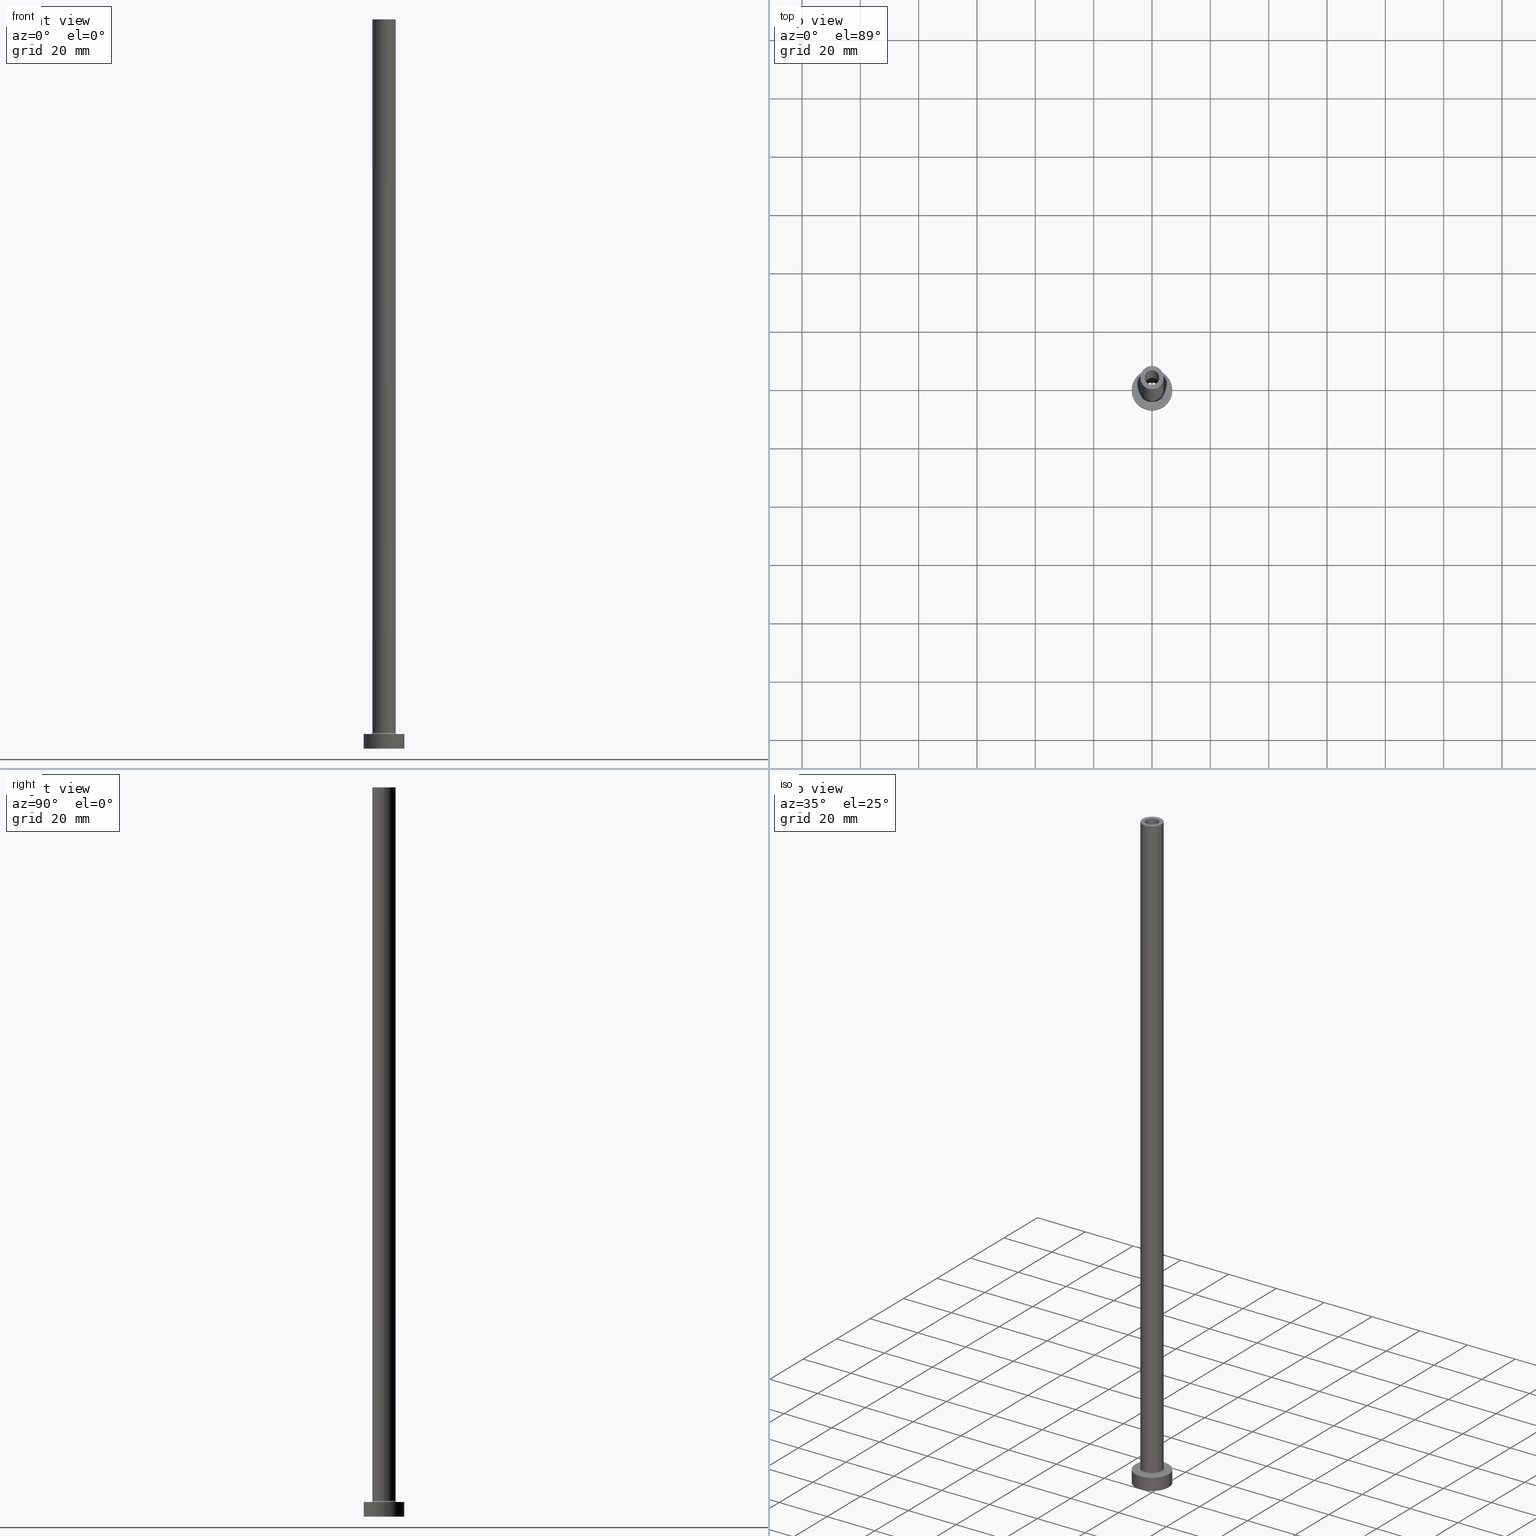
[diagram: canonical four-view strip — front | top / right | iso, engineering-drawing reading convention]
A machine part, canonical four-view strip (front | top / right | iso — engineering-drawing reading convention). The complete STEP part file that produces these views, byte-faithful:
ISO-10303-21;
HEADER;
FILE_DESCRIPTION (( 'STEP AP203' ),
    '1' );
FILE_NAME ('ade3.STEP',
    '2023-02-13T17:10:36',
    ( '' ),
    ( '' ),
    'SwSTEP 2.0',
    'SolidWorks 2019',
    '' );
FILE_SCHEMA (( 'CONFIG_CONTROL_DESIGN' ));
ENDSEC;

DATA;
#1 = PERSON_AND_ORGANIZATION ( #225, #431 ) ;
#2 = PLANE ( 'NONE',  #218 ) ;
#3 = ORIENTED_EDGE ( 'NONE', *, *, #113, .T. ) ;
#4 = AXIS2_PLACEMENT_3D ( 'NONE', #323, #283, #158 ) ;
#5 = CALENDAR_DATE ( 2023, 13, 2 ) ;
#6 = CC_DESIGN_PERSON_AND_ORGANIZATION_ASSIGNMENT ( #1, #369, ( #384 ) ) ;
#7 = VERTEX_POINT ( 'NONE', #350 ) ;
#8 = PLANE ( 'NONE',  #154 ) ;
#9 = PRODUCT_DEFINITION_SHAPE ( 'NONE', 'NONE',  #239 ) ;
#10 = AXIS2_PLACEMENT_3D ( 'NONE', #444, #296, #141 ) ;
#11 = DIRECTION ( 'NONE',  ( -0.000000000000000000, -0.000000000000000000, -1.000000000000000000 ) ) ;
#12 = LOCAL_TIME ( 18, 10, 36.00000000000000000, #25 ) ;
#13 = CIRCLE ( 'NONE', #456, 7.000000000000000000 ) ;
#14 = CARTESIAN_POINT ( 'NONE',  ( 2.500000000000000000, 3.061616997868382648E-16, 205.0000000000000284 ) ) ;
#15 = ORIENTED_EDGE ( 'NONE', *, *, #251, .T. ) ;
#16 = APPROVAL_STATUS ( 'not_yet_approved' ) ;
#17 = CARTESIAN_POINT ( 'NONE',  ( 0.000000000000000000, 0.000000000000000000, 250.0000000000000000 ) ) ;
#18 = DIRECTION ( 'NONE',  ( 0.000000000000000000, 0.000000000000000000, 1.000000000000000000 ) ) ;
#19 = VERTEX_POINT ( 'NONE', #104 ) ;
#20 = AXIS2_PLACEMENT_3D ( 'NONE', #84, #331, #257 ) ;
#21 = EDGE_CURVE ( 'NONE', #332, #204, #62, .T. ) ;
#22 = APPLICATION_CONTEXT ( 'configuration controlled 3d designs of mechanical parts and assemblies' ) ;
#23 = DIRECTION ( 'NONE',  ( 0.000000000000000000, 0.000000000000000000, 1.000000000000000000 ) ) ;
#24 = ORIENTED_EDGE ( 'NONE', *, *, #440, .T. ) ;
#25 = COORDINATED_UNIVERSAL_TIME_OFFSET ( 1, 0, .AHEAD. ) ;
#26 = LINE ( 'NONE', #349, #112 ) ;
#27 = ORIENTED_EDGE ( 'NONE', *, *, #271, .F. ) ;
#28 = DATE_TIME_ROLE ( 'classification_date' ) ;
#29 = CARTESIAN_POINT ( 'NONE',  ( 0.000000000000000000, 0.000000000000000000, 250.0000000000000000 ) ) ;
#30 = PERSON_AND_ORGANIZATION ( #225, #431 ) ;
#31 = CIRCLE ( 'NONE', #88, 4.000000000000000000 ) ;
#32 = LINE ( 'NONE', #270, #235 ) ;
#33 = ORIENTED_EDGE ( 'NONE', *, *, #210, .F. ) ;
#34 = DIRECTION ( 'NONE',  ( -1.000000000000000000, 0.000000000000000000, 0.000000000000000000 ) ) ;
#35 = EDGE_CURVE ( 'NONE', #92, #258, #99, .T. ) ;
#36 = DIRECTION ( 'NONE',  ( 0.000000000000000000, 0.000000000000000000, 1.000000000000000000 ) ) ;
#37 = VECTOR ( 'NONE', #272, 1000.000000000000000 ) ;
#38 = CIRCLE ( 'NONE', #353, 4.500000000000000888 ) ;
#39 = CIRCLE ( 'NONE', #134, 2.500000000000000000 ) ;
#40 = VECTOR ( 'NONE', #315, 1000.000000000000000 ) ;
#41 =( NAMED_UNIT ( * ) SI_UNIT ( $, .STERADIAN. ) SOLID_ANGLE_UNIT ( ) );
#42 = DIRECTION ( 'NONE',  ( 1.000000000000000000, 0.000000000000000000, -0.000000000000000000 ) ) ;
#43 = ORIENTED_EDGE ( 'NONE', *, *, #59, .F. ) ;
#44 = DATE_AND_TIME ( #5, #355 ) ;
#45 = EDGE_CURVE ( 'NONE', #157, #92, #418, .T. ) ;
#46 = EDGE_LOOP ( 'NONE', ( #43, #256 ) ) ;
#47 = AXIS2_PLACEMENT_3D ( 'NONE', #273, #381, #348 ) ;
#48 = ORIENTED_EDGE ( 'NONE', *, *, #325, .F. ) ;
#49 = DIRECTION ( 'NONE',  ( -1.000000000000000000, 0.000000000000000000, 0.000000000000000000 ) ) ;
#50 = CIRCLE ( 'NONE', #365, 7.000000000000000000 ) ;
#51 = CARTESIAN_POINT ( 'NONE',  ( 0.000000000000000000, 0.000000000000000000, 5.000000000000000000 ) ) ;
#52 = AXIS2_PLACEMENT_3D ( 'NONE', #136, #387, #101 ) ;
#53 = ORIENTED_EDGE ( 'NONE', *, *, #59, .T. ) ;
#54 = PERSON_AND_ORGANIZATION ( #225, #431 ) ;
#55 = DIRECTION ( 'NONE',  ( 0.000000000000000000, 0.000000000000000000, 1.000000000000000000 ) ) ;
#56 = ORIENTED_EDGE ( 'NONE', *, *, #376, .T. ) ;
#57 = CARTESIAN_POINT ( 'NONE',  ( 0.000000000000000000, 0.000000000000000000, 212.4953318805773961 ) ) ;
#58 = ORIENTED_EDGE ( 'NONE', *, *, #461, .F. ) ;
#59 = EDGE_CURVE ( 'NONE', #434, #166, #433, .T. ) ;
#60 = FACE_OUTER_BOUND ( 'NONE', #339, .T. ) ;
#61 = ORIENTED_EDGE ( 'NONE', *, *, #181, .F. ) ;
#62 = CIRCLE ( 'NONE', #378, 2.500000000000000000 ) ;
#63 = CARTESIAN_POINT ( 'NONE',  ( 0.000000000000000000, 0.000000000000000000, 5.000000000000000000 ) ) ;
#64 = ORIENTED_EDGE ( 'NONE', *, *, #113, .F. ) ;
#65 = EDGE_CURVE ( 'NONE', #229, #19, #290, .T. ) ;
#66 = CARTESIAN_POINT ( 'NONE',  ( 0.000000000000000000, 0.000000000000000000, 5.000000000000000000 ) ) ;
#67 = DIRECTION ( 'NONE',  ( 0.000000000000000000, 0.000000000000000000, 1.000000000000000000 ) ) ;
#68 = DIRECTION ( 'NONE',  ( 1.000000000000000000, 0.000000000000000000, 0.000000000000000000 ) ) ;
#69 = APPROVAL_PERSON_ORGANIZATION ( #391, #351, #435 ) ;
#70 = DIRECTION ( 'NONE',  ( -1.000000000000000000, 0.000000000000000000, 0.000000000000000000 ) ) ;
#71 = CARTESIAN_POINT ( 'NONE',  ( -2.500000000000000000, 0.000000000000000000, 250.0000000000000000 ) ) ;
#72 = CARTESIAN_POINT ( 'NONE',  ( 0.000000000000000000, 0.000000000000000000, 250.0000000000000000 ) ) ;
#73 = ADVANCED_FACE ( 'NONE', ( #428 ), #245, .F. ) ;
#74 = VECTOR ( 'NONE', #188, 1000.000000000000000 ) ;
#75 = CC_DESIGN_SECURITY_CLASSIFICATION ( #173, ( #384 ) ) ;
#76 =( NAMED_UNIT ( * ) PLANE_ANGLE_UNIT ( ) SI_UNIT ( $, .RADIAN. ) );
#77 = FACE_OUTER_BOUND ( 'NONE', #362, .T. ) ;
#78 = ORIENTED_EDGE ( 'NONE', *, *, #138, .F. ) ;
#79 = CARTESIAN_POINT ( 'NONE',  ( 0.000000000000000000, 0.000000000000000000, 0.000000000000000000 ) ) ;
#80 = VERTEX_POINT ( 'NONE', #326 ) ;
#81 = ADVANCED_FACE ( 'NONE', ( #318, #149 ), #8, .T. ) ;
#82 = FACE_OUTER_BOUND ( 'NONE', #375, .T. ) ;
#83 = ORIENTED_EDGE ( 'NONE', *, *, #181, .T. ) ;
#84 = CARTESIAN_POINT ( 'NONE',  ( -4.500000000000000888, 5.510910596163089556E-16, 5.500000000000005329 ) ) ;
#85 = ORIENTED_EDGE ( 'NONE', *, *, #282, .T. ) ;
#86 = APPROVAL_DATE_TIME ( #320, #351 ) ;
#87 = DIRECTION ( 'NONE',  ( 1.000000000000000000, 0.000000000000000000, 0.000000000000000000 ) ) ;
#88 = AXIS2_PLACEMENT_3D ( 'NONE', #449, #255, #119 ) ;
#89 = ORIENTED_EDGE ( 'NONE', *, *, #217, .F. ) ;
#90 = CC_DESIGN_PERSON_AND_ORGANIZATION_ASSIGNMENT ( #54, #194, ( #384 ) ) ;
#91 = CARTESIAN_POINT ( 'NONE',  ( 2.500000000000000000, 3.061616997868382648E-16, 250.0000000000000000 ) ) ;
#92 = VERTEX_POINT ( 'NONE', #117 ) ;
#93 = FACE_BOUND ( 'NONE', #439, .T. ) ;
#94 = ORIENTED_EDGE ( 'NONE', *, *, #210, .T. ) ;
#95 = CIRCLE ( 'NONE', #4, 0.5000000000000004441 ) ;
#96 = DIRECTION ( 'NONE',  ( 0.000000000000000000, 0.000000000000000000, 1.000000000000000000 ) ) ;
#97 = VERTEX_POINT ( 'NONE', #253 ) ;
#98 = TOROIDAL_SURFACE ( 'NONE', #287, 4.500000000000000888, 0.5000000000000000000 ) ;
#99 = CIRCLE ( 'NONE', #114, 4.000000000000000000 ) ;
#100 = ADVANCED_FACE ( 'NONE', ( #400, #82 ), #2, .F. ) ;
#101 = DIRECTION ( 'NONE',  ( 1.000000000000000000, 0.000000000000000000, 0.000000000000000000 ) ) ;
#102 = CARTESIAN_POINT ( 'NONE',  ( 0.000000000000000000, 0.000000000000000000, 250.0000000000000000 ) ) ;
#103 = DIRECTION ( 'NONE',  ( 0.000000000000000000, 0.000000000000000000, -1.000000000000000000 ) ) ;
#104 = CARTESIAN_POINT ( 'NONE',  ( -2.500000000000000000, 0.000000000000000000, 250.0000000000000000 ) ) ;
#105 = DIRECTION ( 'NONE',  ( 0.000000000000000000, 0.000000000000000000, 1.000000000000000000 ) ) ;
#106 = AXIS2_PLACEMENT_3D ( 'NONE', #297, #230, #291 ) ;
#107 = DIRECTION ( 'NONE',  ( 1.000000000000000000, 0.000000000000000000, 0.000000000000000000 ) ) ;
#108 = CC_DESIGN_DATE_AND_TIME_ASSIGNMENT ( #44, #182, ( #239 ) ) ;
#109 = CYLINDRICAL_SURFACE ( 'NONE', #47, 4.000000000000000000 ) ;
#110 = DIRECTION ( 'NONE',  ( 0.000000000000000000, 0.000000000000000000, 1.000000000000000000 ) ) ;
#111 = CARTESIAN_POINT ( 'NONE',  ( 0.000000000000000000, 0.000000000000000000, 205.0000000000000284 ) ) ;
#112 = VECTOR ( 'NONE', #203, 1000.000000000000000 ) ;
#113 = EDGE_CURVE ( 'NONE', #252, #288, #13, .T. ) ;
#114 = AXIS2_PLACEMENT_3D ( 'NONE', #133, #110, #312 ) ;
#115 = COORDINATED_UNIVERSAL_TIME_OFFSET ( 1, 0, .AHEAD. ) ;
#116 = APPROVAL_STATUS ( 'not_yet_approved' ) ;
#117 = CARTESIAN_POINT ( 'NONE',  ( 4.000000000000000000, 4.898587196589412829E-16, 5.500000000000005329 ) ) ;
#118 = CYLINDRICAL_SURFACE ( 'NONE', #368, 2.649999999999999911 ) ;
#119 = DIRECTION ( 'NONE',  ( 1.000000000000000000, 0.000000000000000000, 0.000000000000000000 ) ) ;
#120 = ORIENTED_EDGE ( 'NONE', *, *, #319, .F. ) ;
#121 = DATE_AND_TIME ( #174, #152 ) ;
#122 = EDGE_CURVE ( 'NONE', #19, #229, #248, .T. ) ;
#123 = CIRCLE ( 'NONE', #278, 7.000000000000000000 ) ;
#124 = CARTESIAN_POINT ( 'NONE',  ( 0.000000000000000000, 0.000000000000000000, 205.0000000000000284 ) ) ;
#125 = ORIENTED_EDGE ( 'NONE', *, *, #130, .F. ) ;
#126 = APPROVAL_STATUS ( 'not_yet_approved' ) ;
#127 = CARTESIAN_POINT ( 'NONE',  ( -2.649999999999999911, 0.000000000000000000, 205.0000000000000284 ) ) ;
#128 = EDGE_LOOP ( 'NONE', ( #295, #48, #56, #198 ) ) ;
#129 = DIRECTION ( 'NONE',  ( -0.000000000000000000, -0.000000000000000000, -1.000000000000000000 ) ) ;
#130 = EDGE_CURVE ( 'NONE', #157, #7, #31, .T. ) ;
#131 = VERTEX_POINT ( 'NONE', #127 ) ;
#132 = CARTESIAN_POINT ( 'NONE',  ( 7.000000000000000000, 8.572527594031473190E-16, 5.000000000000000000 ) ) ;
#133 = CARTESIAN_POINT ( 'NONE',  ( 0.000000000000000000, 0.000000000000000000, 5.500000000000005329 ) ) ;
#134 = AXIS2_PLACEMENT_3D ( 'NONE', #313, #460, #457 ) ;
#135 = CARTESIAN_POINT ( 'NONE',  ( -4.000000000000000000, 0.000000000000000000, 250.0000000000000000 ) ) ;
#136 = CARTESIAN_POINT ( 'NONE',  ( 0.000000000000000000, 0.000000000000000000, 5.500000000000005329 ) ) ;
#137 = CARTESIAN_POINT ( 'NONE',  ( 0.000000000000000000, 0.000000000000000000, 0.000000000000000000 ) ) ;
#138 = EDGE_CURVE ( 'NONE', #380, #301, #314, .T. ) ;
#139 = CARTESIAN_POINT ( 'NONE',  ( 7.000000000000000000, 8.572527594031473190E-16, 0.000000000000000000 ) ) ;
#140 = FACE_OUTER_BOUND ( 'NONE', #402, .T. ) ;
#141 = DIRECTION ( 'NONE',  ( -1.000000000000000000, 0.000000000000000000, 0.000000000000000000 ) ) ;
#142 = ADVANCED_FACE ( 'NONE', ( #156 ), #300, .T. ) ;
#143 = PERSON_AND_ORGANIZATION ( #225, #431 ) ;
#144 = ADVANCED_BREP_SHAPE_REPRESENTATION ( 'ade3', ( #419, #268 ), #259 ) ;
#145 = CARTESIAN_POINT ( 'NONE',  ( 0.000000000000000000, 0.000000000000000000, 0.000000000000000000 ) ) ;
#146 = AXIS2_PLACEMENT_3D ( 'NONE', #111, #432, #395 ) ;
#147 = EDGE_LOOP ( 'NONE', ( #222, #216 ) ) ;
#148 = EDGE_LOOP ( 'NONE', ( #399, #406, #231, #168 ) ) ;
#149 = FACE_OUTER_BOUND ( 'NONE', #187, .T. ) ;
#150 = ORIENTED_EDGE ( 'NONE', *, *, #364, .F. ) ;
#151 = EDGE_CURVE ( 'NONE', #80, #131, #361, .T. ) ;
#152 = LOCAL_TIME ( 18, 10, 36.00000000000000000, #448 ) ;
#153 = LOCAL_TIME ( 18, 10, 36.00000000000000000, #360 ) ;
#154 = AXIS2_PLACEMENT_3D ( 'NONE', #437, #358, #42 ) ;
#155 = FACE_OUTER_BOUND ( 'NONE', #344, .T. ) ;
#156 = FACE_OUTER_BOUND ( 'NONE', #128, .T. ) ;
#157 = VERTEX_POINT ( 'NONE', #159 ) ;
#158 = DIRECTION ( 'NONE',  ( 0.000000000000000000, 0.000000000000000000, -1.000000000000000000 ) ) ;
#159 = CARTESIAN_POINT ( 'NONE',  ( 4.000000000000000000, 4.898587196589412829E-16, 250.0000000000000000 ) ) ;
#160 = ORIENTED_EDGE ( 'NONE', *, *, #306, .F. ) ;
#161 = AXIS2_PLACEMENT_3D ( 'NONE', #124, #18, #401 ) ;
#162 = CARTESIAN_POINT ( 'NONE',  ( 2.649999999999999911, 3.245314017740485962E-16, 212.4953318805773961 ) ) ;
#163 = CLOSED_SHELL ( 'NONE', ( #436, #243, #429, #286, #451, #404, #81, #100, #142, #232, #398, #254, #186, #73 ) ) ;
#164 = ORIENTED_EDGE ( 'NONE', *, *, #35, .T. ) ;
#165 = DIRECTION ( 'NONE',  ( 1.000000000000000000, 0.000000000000000000, -0.000000000000000000 ) ) ;
#166 = VERTEX_POINT ( 'NONE', #374 ) ;
#167 = DIRECTION ( 'NONE',  ( -0.000000000000000000, -0.000000000000000000, -1.000000000000000000 ) ) ;
#168 = ORIENTED_EDGE ( 'NONE', *, *, #282, .F. ) ;
#169 = SHAPE_DEFINITION_REPRESENTATION ( #9, #144 ) ;
#170 = AXIS2_PLACEMENT_3D ( 'NONE', #63, #167, #383 ) ;
#171 = CARTESIAN_POINT ( 'NONE',  ( 0.000000000000000000, 0.000000000000000000, 0.000000000000000000 ) ) ;
#172 = DIRECTION ( 'NONE',  ( 0.000000000000000000, 0.000000000000000000, -1.000000000000000000 ) ) ;
#173 = SECURITY_CLASSIFICATION ( '', '', #430 ) ;
#174 = CALENDAR_DATE ( 2023, 13, 2 ) ;
#175 = DIRECTION ( 'NONE',  ( 0.000000000000000000, 0.000000000000000000, 1.000000000000000000 ) ) ;
#176 = CC_DESIGN_PERSON_AND_ORGANIZATION_ASSIGNMENT ( #143, #180, ( #422 ) ) ;
#177 = DIRECTION ( 'NONE',  ( 1.000000000000000000, 0.000000000000000000, 0.000000000000000000 ) ) ;
#178 = AXIS2_PLACEMENT_3D ( 'NONE', #294, #260, #87 ) ;
#179 = CIRCLE ( 'NONE', #178, 7.000000000000000000 ) ;
#180 = PERSON_AND_ORGANIZATION_ROLE ( 'design_owner' ) ;
#181 = EDGE_CURVE ( 'NONE', #258, #301, #424, .T. ) ;
#182 = DATE_TIME_ROLE ( 'creation_date' ) ;
#183 = APPROVAL_PERSON_ORGANIZATION ( #389, #336, #250 ) ;
#184 = AXIS2_PLACEMENT_3D ( 'NONE', #17, #407, #226 ) ;
#185 = CALENDAR_DATE ( 2023, 13, 2 ) ;
#186 = ADVANCED_FACE ( 'NONE', ( #366, #60 ), #334, .F. ) ;
#187 = EDGE_LOOP ( 'NONE', ( #280, #94 ) ) ;
#188 = DIRECTION ( 'NONE',  ( 0.000000000000000000, 0.000000000000000000, -1.000000000000000000 ) ) ;
#189 = EDGE_LOOP ( 'NONE', ( #371, #394 ) ) ;
#190 = AXIS2_PLACEMENT_3D ( 'NONE', #29, #459, #107 ) ;
#191 = EDGE_CURVE ( 'NONE', #166, #434, #199, .T. ) ;
#192 = DIRECTION ( 'NONE',  ( 1.000000000000000000, 0.000000000000000000, 0.000000000000000000 ) ) ;
#193 = ORIENTED_EDGE ( 'NONE', *, *, #263, .F. ) ;
#194 = PERSON_AND_ORGANIZATION_ROLE ( 'design_supplier' ) ;
#195 = DIRECTION ( 'NONE',  ( 0.000000000000000000, 0.000000000000000000, -1.000000000000000000 ) ) ;
#196 = ORIENTED_EDGE ( 'NONE', *, *, #440, .F. ) ;
#197 = DIRECTION ( 'NONE',  ( 0.000000000000000000, 0.000000000000000000, -1.000000000000000000 ) ) ;
#198 = ORIENTED_EDGE ( 'NONE', *, *, #364, .T. ) ;
#199 = CIRCLE ( 'NONE', #377, 2.649999999999999911 ) ;
#200 = CARTESIAN_POINT ( 'NONE',  ( 0.000000000000000000, 0.000000000000000000, 205.0000000000000284 ) ) ;
#201 = ORIENTED_EDGE ( 'NONE', *, *, #191, .T. ) ;
#202 = DATE_AND_TIME ( #412, #12 ) ;
#203 = DIRECTION ( 'NONE',  ( 0.000000000000000000, 0.000000000000000000, -1.000000000000000000 ) ) ;
#204 = VERTEX_POINT ( 'NONE', #14 ) ;
#205 = DIRECTION ( 'NONE',  ( 0.000000000000000000, 0.000000000000000000, 1.000000000000000000 ) ) ;
#206 = AXIS2_PLACEMENT_3D ( 'NONE', #385, #208, #34 ) ;
#207 = LINE ( 'NONE', #71, #445 ) ;
#208 = DIRECTION ( 'NONE',  ( 0.000000000000000000, 0.000000000000000000, -1.000000000000000000 ) ) ;
#209 = DIRECTION ( 'NONE',  ( -0.000000000000000000, -0.000000000000000000, -1.000000000000000000 ) ) ;
#210 = EDGE_CURVE ( 'NONE', #97, #453, #179, .T. ) ;
#211 = APPLICATION_CONTEXT ( 'configuration controlled 3d designs of mechanical parts and assemblies' ) ;
#212 = DIRECTION ( 'NONE',  ( 1.000000000000000000, 0.000000000000000000, 0.000000000000000000 ) ) ;
#213 = CIRCLE ( 'NONE', #146, 2.649999999999999911 ) ;
#214 = AXIS2_PLACEMENT_3D ( 'NONE', #372, #23, #165 ) ;
#215 = APPROVAL_PERSON_ORGANIZATION ( #302, #425, #233 ) ;
#216 = ORIENTED_EDGE ( 'NONE', *, *, #130, .T. ) ;
#217 = EDGE_CURVE ( 'NONE', #229, #204, #442, .T. ) ;
#218 = AXIS2_PLACEMENT_3D ( 'NONE', #145, #279, #303 ) ;
#219 = ORIENTED_EDGE ( 'NONE', *, *, #65, .T. ) ;
#220 = EDGE_CURVE ( 'NONE', #301, #380, #38, .T. ) ;
#221 = DIRECTION ( 'NONE',  ( 1.000000000000000000, 0.000000000000000000, 0.000000000000000000 ) ) ;
#222 = ORIENTED_EDGE ( 'NONE', *, *, #325, .T. ) ;
#223 = CC_DESIGN_APPROVAL ( #351, ( #239 ) ) ;
#224 = DATE_AND_TIME ( #185, #153 ) ;
#225 = PERSON ( 'NEUR�EN�', 'NEUR�EN�', 'NEUR�EN�', ('NEUR�EN�'), ('NEUR�EN�'), ('NEUR�EN�') ) ;
#226 = DIRECTION ( 'NONE',  ( 1.000000000000000000, 0.000000000000000000, 0.000000000000000000 ) ) ;
#227 = ORIENTED_EDGE ( 'NONE', *, *, #410, .T. ) ;
#228 = FACE_OUTER_BOUND ( 'NONE', #147, .T. ) ;
#229 = VERTEX_POINT ( 'NONE', #91 ) ;
#230 = DIRECTION ( 'NONE',  ( -0.000000000000000000, -0.000000000000000000, -1.000000000000000000 ) ) ;
#231 = ORIENTED_EDGE ( 'NONE', *, *, #21, .F. ) ;
#232 = ADVANCED_FACE ( 'NONE', ( #93, #228 ), #340, .T. ) ;
#233 = APPROVAL_ROLE ( '' ) ;
#234 = VECTOR ( 'NONE', #195, 1000.000000000000000 ) ;
#235 = VECTOR ( 'NONE', #417, 1000.000000000000000 ) ;
#236 = CYLINDRICAL_SURFACE ( 'NONE', #329, 2.649999999999999911 ) ;
#237 = ORIENTED_EDGE ( 'NONE', *, *, #122, .F. ) ;
#238 = FACE_OUTER_BOUND ( 'NONE', #373, .T. ) ;
#239 = PRODUCT_DEFINITION ( 'NEZN�M�', '', #384, #292 ) ;
#240 = CYLINDRICAL_SURFACE ( 'NONE', #170, 7.000000000000000000 ) ;
#241 = CYLINDRICAL_SURFACE ( 'NONE', #206, 2.500000000000000000 ) ;
#242 = CARTESIAN_POINT ( 'NONE',  ( -2.500000000000000000, 0.000000000000000000, 205.0000000000000284 ) ) ;
#243 = ADVANCED_FACE ( 'NONE', ( #266 ), #236, .F. ) ;
#244 =( LENGTH_UNIT ( ) NAMED_UNIT ( * ) SI_UNIT ( .MILLI., .METRE. ) );
#245 = CYLINDRICAL_SURFACE ( 'NONE', #281, 2.500000000000000000 ) ;
#246 = DIRECTION ( 'NONE',  ( 0.000000000000000000, 0.000000000000000000, 1.000000000000000000 ) ) ;
#247 = LOCAL_TIME ( 18, 10, 36.00000000000000000, #115 ) ;
#248 = CIRCLE ( 'NONE', #184, 2.500000000000000000 ) ;
#249 = CALENDAR_DATE ( 2023, 13, 2 ) ;
#250 = APPROVAL_ROLE ( '' ) ;
#251 = EDGE_CURVE ( 'NONE', #80, #166, #338, .T. ) ;
#252 = VERTEX_POINT ( 'NONE', #327 ) ;
#253 = CARTESIAN_POINT ( 'NONE',  ( 7.000000000000000000, 8.572527594031473190E-16, 5.000000000000000000 ) ) ;
#254 = ADVANCED_FACE ( 'NONE', ( #155 ), #118, .F. ) ;
#255 = DIRECTION ( 'NONE',  ( 0.000000000000000000, 0.000000000000000000, 1.000000000000000000 ) ) ;
#256 = ORIENTED_EDGE ( 'NONE', *, *, #191, .F. ) ;
#257 = DIRECTION ( 'NONE',  ( -1.000000000000000000, 1.224646799147351482E-16, 0.000000000000000000 ) ) ;
#258 = VERTEX_POINT ( 'NONE', #454 ) ;
#259 =( GEOMETRIC_REPRESENTATION_CONTEXT ( 3 ) GLOBAL_UNCERTAINTY_ASSIGNED_CONTEXT ( ( #284 ) ) GLOBAL_UNIT_ASSIGNED_CONTEXT ( ( #244, #76, #41 ) ) REPRESENTATION_CONTEXT ( 'NONE', 'WORKASPACE' ) );
#260 = DIRECTION ( 'NONE',  ( 0.000000000000000000, 0.000000000000000000, 1.000000000000000000 ) ) ;
#261 = ORIENTED_EDGE ( 'NONE', *, *, #65, .F. ) ;
#262 = APPROVAL_DATE_TIME ( #202, #425 ) ;
#263 = EDGE_CURVE ( 'NONE', #453, #97, #123, .T. ) ;
#264 = DIRECTION ( 'NONE',  ( -1.000000000000000000, 0.000000000000000000, 0.000000000000000000 ) ) ;
#265 = ORIENTED_EDGE ( 'NONE', *, *, #35, .F. ) ;
#266 = FACE_OUTER_BOUND ( 'NONE', #341, .T. ) ;
#267 = EDGE_LOOP ( 'NONE', ( #328, #443 ) ) ;
#268 = AXIS2_PLACEMENT_3D ( 'NONE', #79, #246, #212 ) ;
#269 = CC_DESIGN_APPROVAL ( #425, ( #173 ) ) ;
#270 = CARTESIAN_POINT ( 'NONE',  ( -7.000000000000000000, 0.000000000000000000, 5.000000000000000000 ) ) ;
#271 = EDGE_CURVE ( 'NONE', #131, #434, #26, .T. ) ;
#272 = DIRECTION ( 'NONE',  ( -0.000000000000000000, -0.000000000000000000, -1.000000000000000000 ) ) ;
#273 = CARTESIAN_POINT ( 'NONE',  ( 0.000000000000000000, 0.000000000000000000, 250.0000000000000000 ) ) ;
#274 = CARTESIAN_POINT ( 'NONE',  ( 0.000000000000000000, 0.000000000000000000, 5.500000000000005329 ) ) ;
#275 = DIRECTION ( 'NONE',  ( -0.000000000000000000, -0.000000000000000000, -1.000000000000000000 ) ) ;
#276 = CARTESIAN_POINT ( 'NONE',  ( 0.000000000000000000, 0.000000000000000000, 212.4953318805773961 ) ) ;
#277 = DIRECTION ( 'NONE',  ( 1.000000000000000000, 0.000000000000000000, 0.000000000000000000 ) ) ;
#278 = AXIS2_PLACEMENT_3D ( 'NONE', #66, #205, #68 ) ;
#279 = DIRECTION ( 'NONE',  ( 0.000000000000000000, 0.000000000000000000, 1.000000000000000000 ) ) ;
#280 = ORIENTED_EDGE ( 'NONE', *, *, #263, .T. ) ;
#281 = AXIS2_PLACEMENT_3D ( 'NONE', #102, #172, #390 ) ;
#282 = EDGE_CURVE ( 'NONE', #19, #332, #207, .T. ) ;
#283 = DIRECTION ( 'NONE',  ( 0.000000000000000000, -1.000000000000000000, 0.000000000000000000 ) ) ;
#284 = UNCERTAINTY_MEASURE_WITH_UNIT (LENGTH_MEASURE( 1.000000000000000082E-05 ), #244, 'distance_accuracy_value', 'NONE');
#285 = ORIENTED_EDGE ( 'NONE', *, *, #220, .F. ) ;
#286 = ADVANCED_FACE ( 'NONE', ( #311 ), #109, .T. ) ;
#287 = AXIS2_PLACEMENT_3D ( 'NONE', #426, #175, #309 ) ;
#288 = VERTEX_POINT ( 'NONE', #139 ) ;
#289 = TOROIDAL_SURFACE ( 'NONE', #414, 4.500000000000000888, 0.5000000000000000000 ) ;
#290 = CIRCLE ( 'NONE', #356, 2.500000000000000000 ) ;
#291 = DIRECTION ( 'NONE',  ( 1.000000000000000000, 0.000000000000000000, 0.000000000000000000 ) ) ;
#292 = DESIGN_CONTEXT ( 'detailed design', #211, 'design' ) ;
#293 = MECHANICAL_CONTEXT ( 'NONE', #22, 'mechanical' ) ;
#294 = CARTESIAN_POINT ( 'NONE',  ( 0.000000000000000000, 0.000000000000000000, 5.000000000000000000 ) ) ;
#295 = ORIENTED_EDGE ( 'NONE', *, *, #45, .F. ) ;
#296 = DIRECTION ( 'NONE',  ( -0.000000000000000000, -0.000000000000000000, -1.000000000000000000 ) ) ;
#297 = CARTESIAN_POINT ( 'NONE',  ( 0.000000000000000000, 0.000000000000000000, 5.000000000000000000 ) ) ;
#298 = ORIENTED_EDGE ( 'NONE', *, *, #410, .F. ) ;
#299 = CC_DESIGN_DATE_AND_TIME_ASSIGNMENT ( #121, #28, ( #173 ) ) ;
#300 = CYLINDRICAL_SURFACE ( 'NONE', #455, 4.000000000000000000 ) ;
#301 = VERTEX_POINT ( 'NONE', #345 ) ;
#302 = PERSON_AND_ORGANIZATION ( #225, #431 ) ;
#303 = DIRECTION ( 'NONE',  ( 1.000000000000000000, 0.000000000000000000, -0.000000000000000000 ) ) ;
#304 = ORIENTED_EDGE ( 'NONE', *, *, #251, .F. ) ;
#305 = LINE ( 'NONE', #132, #37 ) ;
#306 = EDGE_CURVE ( 'NONE', #453, #252, #32, .T. ) ;
#307 = DIRECTION ( 'NONE',  ( 0.000000000000000000, 0.000000000000000000, 1.000000000000000000 ) ) ;
#308 = DIRECTION ( 'NONE',  ( 1.000000000000000000, 0.000000000000000000, 0.000000000000000000 ) ) ;
#309 = DIRECTION ( 'NONE',  ( 1.000000000000000000, 0.000000000000000000, 0.000000000000000000 ) ) ;
#310 = DIRECTION ( 'NONE',  ( 1.000000000000000000, 0.000000000000000000, 0.000000000000000000 ) ) ;
#311 = FACE_OUTER_BOUND ( 'NONE', #335, .T. ) ;
#312 = DIRECTION ( 'NONE',  ( 1.000000000000000000, 0.000000000000000000, 0.000000000000000000 ) ) ;
#313 = CARTESIAN_POINT ( 'NONE',  ( 0.000000000000000000, 0.000000000000000000, 205.0000000000000284 ) ) ;
#314 = CIRCLE ( 'NONE', #106, 4.500000000000000888 ) ;
#315 = DIRECTION ( 'NONE',  ( -0.000000000000000000, -0.000000000000000000, -1.000000000000000000 ) ) ;
#316 = PRODUCT_RELATED_PRODUCT_CATEGORY ( 'detail', '', ( #422 ) ) ;
#317 = APPROVAL_DATE_TIME ( #224, #336 ) ;
#318 = FACE_BOUND ( 'NONE', #189, .T. ) ;
#319 = EDGE_CURVE ( 'NONE', #288, #252, #50, .T. ) ;
#320 = DATE_AND_TIME ( #249, #247 ) ;
#321 = CIRCLE ( 'NONE', #190, 4.000000000000000000 ) ;
#322 = ORIENTED_EDGE ( 'NONE', *, *, #271, .T. ) ;
#323 = CARTESIAN_POINT ( 'NONE',  ( 4.500000000000000888, 0.000000000000000000, 5.500000000000005329 ) ) ;
#324 = ORIENTED_EDGE ( 'NONE', *, *, #151, .F. ) ;
#325 = EDGE_CURVE ( 'NONE', #7, #157, #321, .T. ) ;
#326 = CARTESIAN_POINT ( 'NONE',  ( 2.649999999999999911, 3.245314017740485962E-16, 205.0000000000000284 ) ) ;
#327 = CARTESIAN_POINT ( 'NONE',  ( -7.000000000000000000, 0.000000000000000000, 0.000000000000000000 ) ) ;
#328 = ORIENTED_EDGE ( 'NONE', *, *, #21, .T. ) ;
#329 = AXIS2_PLACEMENT_3D ( 'NONE', #57, #197, #49 ) ;
#330 = AXIS2_PLACEMENT_3D ( 'NONE', #137, #275, #388 ) ;
#331 = DIRECTION ( 'NONE',  ( 1.224646799147353207E-16, 1.000000000000000000, -0.000000000000000000 ) ) ;
#332 = VERTEX_POINT ( 'NONE', #242 ) ;
#333 = CARTESIAN_POINT ( 'NONE',  ( -7.000000000000000000, 0.000000000000000000, 5.000000000000000000 ) ) ;
#334 = PLANE ( 'NONE',  #397 ) ;
#335 = EDGE_LOOP ( 'NONE', ( #125, #411, #164, #363 ) ) ;
#336 = APPROVAL ( #116, 'NEUR�EN�' ) ;
#337 = PERSON_AND_ORGANIZATION_ROLE ( 'classification_officer' ) ;
#338 = LINE ( 'NONE', #162, #74 ) ;
#339 = EDGE_LOOP ( 'NONE', ( #58, #324 ) ) ;
#340 = PLANE ( 'NONE',  #214 ) ;
#341 = EDGE_LOOP ( 'NONE', ( #408, #15, #201, #27 ) ) ;
#342 = EDGE_CURVE ( 'NONE', #204, #332, #39, .T. ) ;
#343 = LINE ( 'NONE', #135, #347 ) ;
#344 = EDGE_LOOP ( 'NONE', ( #304, #367, #322, #53 ) ) ;
#345 = CARTESIAN_POINT ( 'NONE',  ( -4.500000000000000888, 5.510910596163088569E-16, 5.000000000000002665 ) ) ;
#346 = CARTESIAN_POINT ( 'NONE',  ( 0.000000000000000000, 0.000000000000000000, 205.0000000000000284 ) ) ;
#347 = VECTOR ( 'NONE', #209, 1000.000000000000000 ) ;
#348 = DIRECTION ( 'NONE',  ( -1.000000000000000000, 0.000000000000000000, 0.000000000000000000 ) ) ;
#349 = CARTESIAN_POINT ( 'NONE',  ( -2.649999999999999911, 0.000000000000000000, 212.4953318805773961 ) ) ;
#350 = CARTESIAN_POINT ( 'NONE',  ( -4.000000000000000000, 0.000000000000000000, 250.0000000000000000 ) ) ;
#351 = APPROVAL ( #16, 'NEUR�EN�' ) ;
#352 = FACE_OUTER_BOUND ( 'NONE', #458, .T. ) ;
#353 = AXIS2_PLACEMENT_3D ( 'NONE', #51, #129, #192 ) ;
#354 = APPLICATION_PROTOCOL_DEFINITION ( 'international standard', 'config_control_design', 1994, #22 ) ;
#355 = LOCAL_TIME ( 18, 10, 36.00000000000000000, #359 ) ;
#356 = AXIS2_PLACEMENT_3D ( 'NONE', #72, #67, #277 ) ;
#357 = CYLINDRICAL_SURFACE ( 'NONE', #10, 7.000000000000000000 ) ;
#358 = DIRECTION ( 'NONE',  ( 0.000000000000000000, 0.000000000000000000, 1.000000000000000000 ) ) ;
#359 = COORDINATED_UNIVERSAL_TIME_OFFSET ( 1, 0, .AHEAD. ) ;
#360 = COORDINATED_UNIVERSAL_TIME_OFFSET ( 1, 0, .AHEAD. ) ;
#361 = CIRCLE ( 'NONE', #161, 2.649999999999999911 ) ;
#362 = EDGE_LOOP ( 'NONE', ( #33, #227, #415, #160 ) ) ;
#363 = ORIENTED_EDGE ( 'NONE', *, *, #376, .F. ) ;
#364 = EDGE_CURVE ( 'NONE', #258, #92, #392, .T. ) ;
#365 = AXIS2_PLACEMENT_3D ( 'NONE', #171, #105, #308 ) ;
#366 = FACE_BOUND ( 'NONE', #267, .T. ) ;
#367 = ORIENTED_EDGE ( 'NONE', *, *, #151, .T. ) ;
#368 = AXIS2_PLACEMENT_3D ( 'NONE', #276, #427, #70 ) ;
#369 = PERSON_AND_ORGANIZATION_ROLE ( 'creator' ) ;
#370 = DIRECTION ( 'NONE',  ( 1.000000000000000000, 0.000000000000000000, -0.000000000000000000 ) ) ;
#371 = ORIENTED_EDGE ( 'NONE', *, *, #138, .T. ) ;
#372 = CARTESIAN_POINT ( 'NONE',  ( 0.000000000000000000, 0.000000000000000000, 250.0000000000000000 ) ) ;
#373 = EDGE_LOOP ( 'NONE', ( #298, #193, #396, #3 ) ) ;
#374 = CARTESIAN_POINT ( 'NONE',  ( 2.649999999999999911, 3.245314017740485962E-16, 0.000000000000000000 ) ) ;
#375 = EDGE_LOOP ( 'NONE', ( #64, #120 ) ) ;
#376 = EDGE_CURVE ( 'NONE', #7, #258, #343, .T. ) ;
#377 = AXIS2_PLACEMENT_3D ( 'NONE', #446, #405, #221 ) ;
#378 = AXIS2_PLACEMENT_3D ( 'NONE', #346, #307, #310 ) ;
#379 = CARTESIAN_POINT ( 'NONE',  ( 4.500000000000000888, 0.000000000000000000, 5.000000000000002665 ) ) ;
#380 = VERTEX_POINT ( 'NONE', #379 ) ;
#381 = DIRECTION ( 'NONE',  ( -0.000000000000000000, -0.000000000000000000, -1.000000000000000000 ) ) ;
#382 = CARTESIAN_POINT ( 'NONE',  ( 4.000000000000000000, 4.898587196589412829E-16, 250.0000000000000000 ) ) ;
#383 = DIRECTION ( 'NONE',  ( -1.000000000000000000, 0.000000000000000000, 0.000000000000000000 ) ) ;
#384 = PRODUCT_DEFINITION_FORMATION_WITH_SPECIFIED_SOURCE ( 'LIBOVOLN�', '', #422, .NOT_KNOWN. ) ;
#385 = CARTESIAN_POINT ( 'NONE',  ( 0.000000000000000000, 0.000000000000000000, 250.0000000000000000 ) ) ;
#386 = CC_DESIGN_PERSON_AND_ORGANIZATION_ASSIGNMENT ( #30, #337, ( #173 ) ) ;
#387 = DIRECTION ( 'NONE',  ( 0.000000000000000000, 0.000000000000000000, 1.000000000000000000 ) ) ;
#388 = DIRECTION ( 'NONE',  ( 1.000000000000000000, 0.000000000000000000, 0.000000000000000000 ) ) ;
#389 = PERSON_AND_ORGANIZATION ( #225, #431 ) ;
#390 = DIRECTION ( 'NONE',  ( -1.000000000000000000, 0.000000000000000000, 0.000000000000000000 ) ) ;
#391 = PERSON_AND_ORGANIZATION ( #225, #431 ) ;
#392 = CIRCLE ( 'NONE', #52, 4.000000000000000000 ) ;
#393 = PERSON_AND_ORGANIZATION ( #225, #431 ) ;
#394 = ORIENTED_EDGE ( 'NONE', *, *, #220, .T. ) ;
#395 = DIRECTION ( 'NONE',  ( 1.000000000000000000, 0.000000000000000000, 0.000000000000000000 ) ) ;
#396 = ORIENTED_EDGE ( 'NONE', *, *, #306, .T. ) ;
#397 = AXIS2_PLACEMENT_3D ( 'NONE', #200, #96, #370 ) ;
#398 = ADVANCED_FACE ( 'NONE', ( #352 ), #289, .F. ) ;
#399 = ORIENTED_EDGE ( 'NONE', *, *, #122, .T. ) ;
#400 = FACE_BOUND ( 'NONE', #46, .T. ) ;
#401 = DIRECTION ( 'NONE',  ( 1.000000000000000000, 0.000000000000000000, 0.000000000000000000 ) ) ;
#402 = EDGE_LOOP ( 'NONE', ( #150, #83, #78, #196 ) ) ;
#403 = APPLICATION_PROTOCOL_DEFINITION ( 'international standard', 'config_control_design', 1994, #211 ) ;
#404 = ADVANCED_FACE ( 'NONE', ( #238 ), #240, .T. ) ;
#405 = DIRECTION ( 'NONE',  ( -0.000000000000000000, -0.000000000000000000, -1.000000000000000000 ) ) ;
#406 = ORIENTED_EDGE ( 'NONE', *, *, #217, .T. ) ;
#407 = DIRECTION ( 'NONE',  ( 0.000000000000000000, 0.000000000000000000, 1.000000000000000000 ) ) ;
#408 = ORIENTED_EDGE ( 'NONE', *, *, #461, .T. ) ;
#409 = CARTESIAN_POINT ( 'NONE',  ( 2.500000000000000000, 3.061616997868382648E-16, 250.0000000000000000 ) ) ;
#410 = EDGE_CURVE ( 'NONE', #97, #288, #305, .T. ) ;
#411 = ORIENTED_EDGE ( 'NONE', *, *, #45, .T. ) ;
#412 = CALENDAR_DATE ( 2023, 13, 2 ) ;
#413 = CARTESIAN_POINT ( 'NONE',  ( 0.000000000000000000, 0.000000000000000000, 0.000000000000000000 ) ) ;
#414 = AXIS2_PLACEMENT_3D ( 'NONE', #274, #36, #177 ) ;
#415 = ORIENTED_EDGE ( 'NONE', *, *, #319, .T. ) ;
#416 = CC_DESIGN_APPROVAL ( #336, ( #384 ) ) ;
#417 = DIRECTION ( 'NONE',  ( -0.000000000000000000, -0.000000000000000000, -1.000000000000000000 ) ) ;
#418 = LINE ( 'NONE', #382, #40 ) ;
#419 = MANIFOLD_SOLID_BREP ( 'Odebrat vysunut�m4', #163 ) ;
#420 = CARTESIAN_POINT ( 'NONE',  ( -2.649999999999999911, 0.000000000000000000, 0.000000000000000000 ) ) ;
#421 = CC_DESIGN_PERSON_AND_ORGANIZATION_ASSIGNMENT ( #393, #441, ( #239 ) ) ;
#422 = PRODUCT ( 'ade3', 'ade3', '', ( #293 ) ) ;
#423 = FACE_OUTER_BOUND ( 'NONE', #148, .T. ) ;
#424 = CIRCLE ( 'NONE', #20, 0.5000000000000004441 ) ;
#425 = APPROVAL ( #126, 'NEUR�EN�' ) ;
#426 = CARTESIAN_POINT ( 'NONE',  ( 0.000000000000000000, 0.000000000000000000, 5.500000000000005329 ) ) ;
#427 = DIRECTION ( 'NONE',  ( 0.000000000000000000, 0.000000000000000000, -1.000000000000000000 ) ) ;
#428 = FACE_OUTER_BOUND ( 'NONE', #450, .T. ) ;
#429 = ADVANCED_FACE ( 'NONE', ( #140 ), #98, .F. ) ;
#430 = SECURITY_CLASSIFICATION_LEVEL ( 'unclassified' ) ;
#431 = ORGANIZATION ( 'NEUR�EN�', 'NEUR�EN�', '' ) ;
#432 = DIRECTION ( 'NONE',  ( 0.000000000000000000, 0.000000000000000000, 1.000000000000000000 ) ) ;
#433 = CIRCLE ( 'NONE', #330, 2.649999999999999911 ) ;
#434 = VERTEX_POINT ( 'NONE', #420 ) ;
#435 = APPROVAL_ROLE ( '' ) ;
#436 = ADVANCED_FACE ( 'NONE', ( #423 ), #241, .F. ) ;
#437 = CARTESIAN_POINT ( 'NONE',  ( 0.000000000000000000, 0.000000000000000000, 5.000000000000000000 ) ) ;
#438 = CARTESIAN_POINT ( 'NONE',  ( 0.000000000000000000, 0.000000000000000000, 250.0000000000000000 ) ) ;
#439 = EDGE_LOOP ( 'NONE', ( #237, #261 ) ) ;
#440 = EDGE_CURVE ( 'NONE', #92, #380, #95, .T. ) ;
#441 = PERSON_AND_ORGANIZATION_ROLE ( 'creator' ) ;
#442 = LINE ( 'NONE', #409, #234 ) ;
#443 = ORIENTED_EDGE ( 'NONE', *, *, #342, .T. ) ;
#444 = CARTESIAN_POINT ( 'NONE',  ( 0.000000000000000000, 0.000000000000000000, 5.000000000000000000 ) ) ;
#445 = VECTOR ( 'NONE', #103, 1000.000000000000000 ) ;
#446 = CARTESIAN_POINT ( 'NONE',  ( 0.000000000000000000, 0.000000000000000000, 0.000000000000000000 ) ) ;
#447 = ORIENTED_EDGE ( 'NONE', *, *, #342, .F. ) ;
#448 = COORDINATED_UNIVERSAL_TIME_OFFSET ( 1, 0, .AHEAD. ) ;
#449 = CARTESIAN_POINT ( 'NONE',  ( 0.000000000000000000, 0.000000000000000000, 250.0000000000000000 ) ) ;
#450 = EDGE_LOOP ( 'NONE', ( #89, #219, #85, #447 ) ) ;
#451 = ADVANCED_FACE ( 'NONE', ( #77 ), #357, .T. ) ;
#452 = DIRECTION ( 'NONE',  ( 1.000000000000000000, 0.000000000000000000, 0.000000000000000000 ) ) ;
#453 = VERTEX_POINT ( 'NONE', #333 ) ;
#454 = CARTESIAN_POINT ( 'NONE',  ( -4.000000000000000000, 0.000000000000000000, 5.500000000000005329 ) ) ;
#455 = AXIS2_PLACEMENT_3D ( 'NONE', #438, #11, #264 ) ;
#456 = AXIS2_PLACEMENT_3D ( 'NONE', #413, #55, #452 ) ;
#457 = DIRECTION ( 'NONE',  ( 1.000000000000000000, 0.000000000000000000, 0.000000000000000000 ) ) ;
#458 = EDGE_LOOP ( 'NONE', ( #61, #265, #24, #285 ) ) ;
#459 = DIRECTION ( 'NONE',  ( 0.000000000000000000, 0.000000000000000000, 1.000000000000000000 ) ) ;
#460 = DIRECTION ( 'NONE',  ( 0.000000000000000000, 0.000000000000000000, 1.000000000000000000 ) ) ;
#461 = EDGE_CURVE ( 'NONE', #131, #80, #213, .T. ) ;
ENDSEC;
END-ISO-10303-21;
